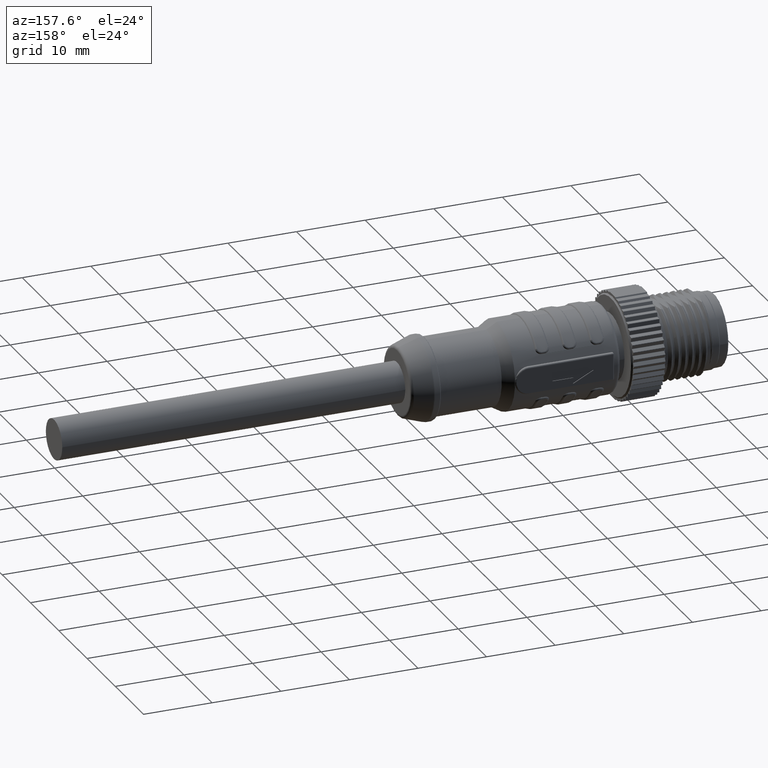
[diagram: clean part render]
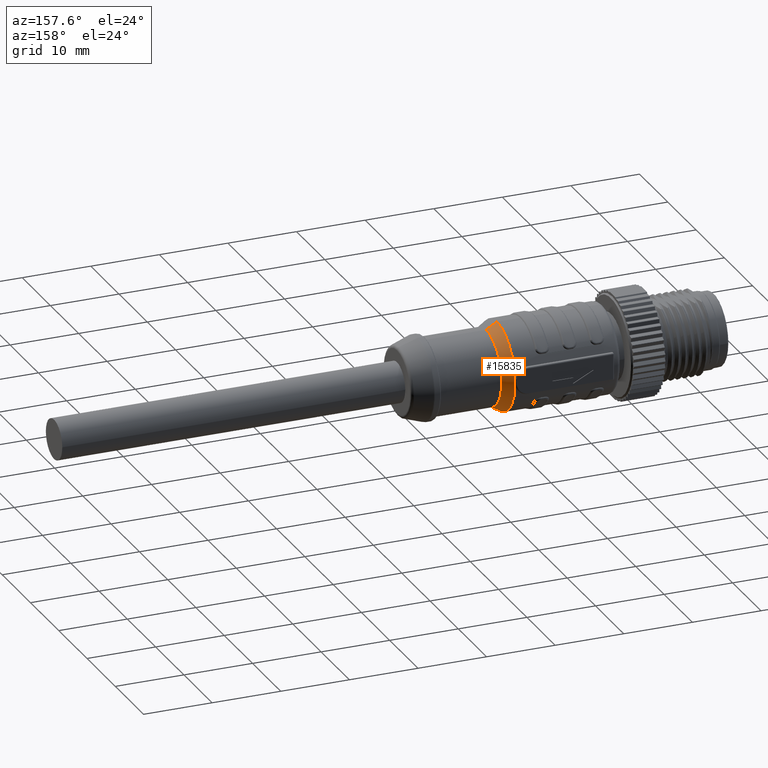
[diagram: same view with one face highlighted and labeled with its STEP entity id]
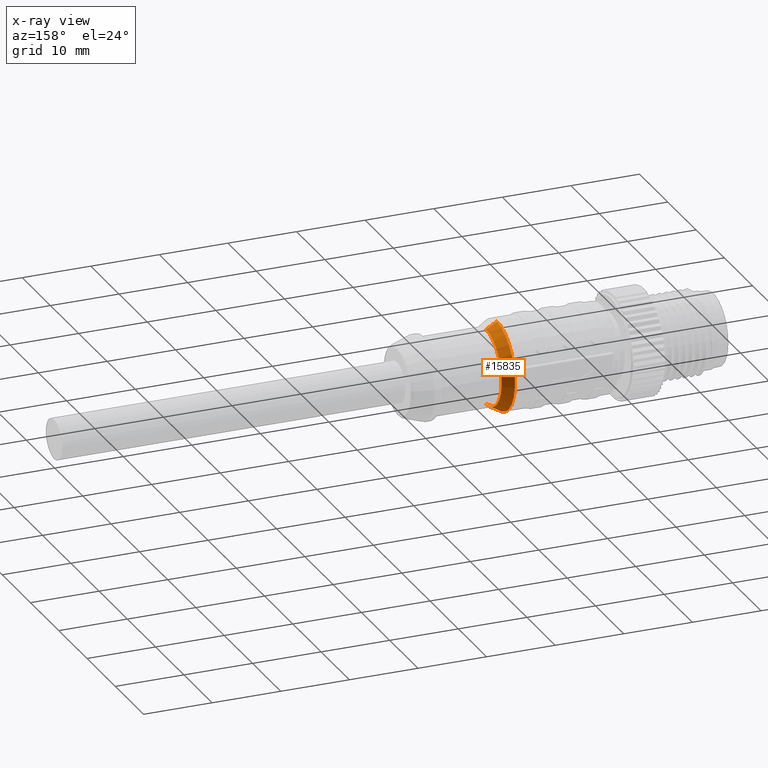
[diagram: x-ray of the same camera — body ghosted, the highlighted face saturated]
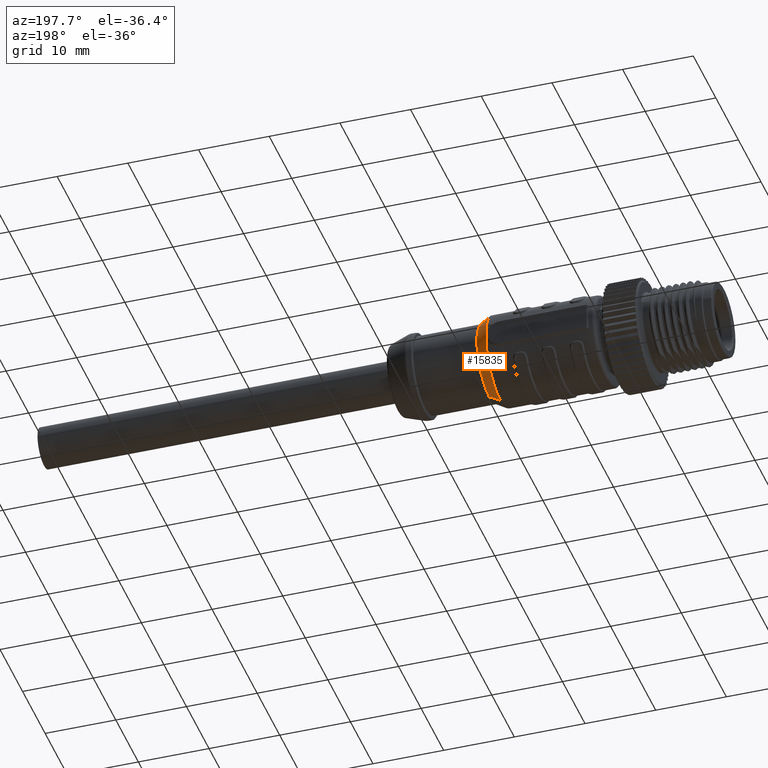
[diagram: same view with one face highlighted and labeled with its STEP entity id]
A machine part, auxiliary view. The second image highlights one B-rep face of the part: STEP entity #15835.
The next image is the same camera in x-ray: the body ghosted, the highlighted face saturated — about 0% of this face is hidden behind the body in this view.
A second angle (auxiliary view) of the same face is appended — the face is thin or edge-on in the first view.
In plain terms, the highlighted conical surface has half-angle 30 deg.
Its self-contained STEP definition (entity closure, byte-faithful):
#168=CARTESIAN_POINT('',(2.964115427319E1,0.E0,0.E0));
#169=DIRECTION('',(-1.E0,0.E0,0.E0));
#170=DIRECTION('',(0.E0,0.E0,1.E0));
#171=AXIS2_PLACEMENT_3D('',#168,#169,#170);
#173=DIRECTION('',(8.660254037843E-1,0.E0,5.000000000002E-1));
#174=VECTOR('',#173,1.799999999998E0);
#175=CARTESIAN_POINT('',(2.964115427319E1,0.E0,-6.399999999999E0));
#176=LINE('',#175,#174);
#177=CARTESIAN_POINT('',(3.12E1,0.E0,0.E0));
#178=DIRECTION('',(1.E0,0.E0,0.E0));
#179=DIRECTION('',(0.E0,0.E0,-1.E0));
#180=AXIS2_PLACEMENT_3D('',#177,#178,#179);
#182=DIRECTION('',(-8.660254037843E-1,0.E0,5.000000000002E-1));
#183=VECTOR('',#182,1.799999999998E0);
#184=CARTESIAN_POINT('',(3.12E1,0.E0,5.499999999999E0));
#185=LINE('',#184,#183);
#12994=CARTESIAN_POINT('',(2.964115427319E1,0.E0,-6.399999999997E0));
#12995=CARTESIAN_POINT('',(2.964115427319E1,0.E0,6.399999999997E0));
#12996=VERTEX_POINT('',#12994);
#12997=VERTEX_POINT('',#12995);
#13066=CARTESIAN_POINT('',(3.12E1,0.E0,5.499999999999E0));
#13067=VERTEX_POINT('',#13066);
#13068=CARTESIAN_POINT('',(3.12E1,0.E0,-5.499999999998E0));
#13069=VERTEX_POINT('',#13068);
#15821=CARTESIAN_POINT('',(3.042057713659E1,0.E0,0.E0));
#15822=DIRECTION('',(-1.E0,0.E0,0.E0));
#15823=DIRECTION('',(0.E0,0.E0,1.E0));
#15824=AXIS2_PLACEMENT_3D('',#15821,#15822,#15823);
#15825=CONICAL_SURFACE('',#15824,5.949999999998E0,3.E1);
#15826=ORIENTED_EDGE('',*,*,#15714,.T.);
#15828=ORIENTED_EDGE('',*,*,#15827,.T.);
#15830=ORIENTED_EDGE('',*,*,#15829,.T.);
#15832=ORIENTED_EDGE('',*,*,#15831,.T.);
#15833=EDGE_LOOP('',(#15826,#15828,#15830,#15832));
#15834=FACE_OUTER_BOUND('',#15833,.F.);
#15835=ADVANCED_FACE('',(#15834),#15825,.T.);
#172=CIRCLE('',#171,6.399999999997E0);
#181=CIRCLE('',#180,5.499999999998E0);
#15714=EDGE_CURVE('',#12997,#12996,#172,.T.);
#15827=EDGE_CURVE('',#12996,#13069,#176,.T.);
#15829=EDGE_CURVE('',#13069,#13067,#181,.T.);
#15831=EDGE_CURVE('',#13067,#12997,#185,.T.);